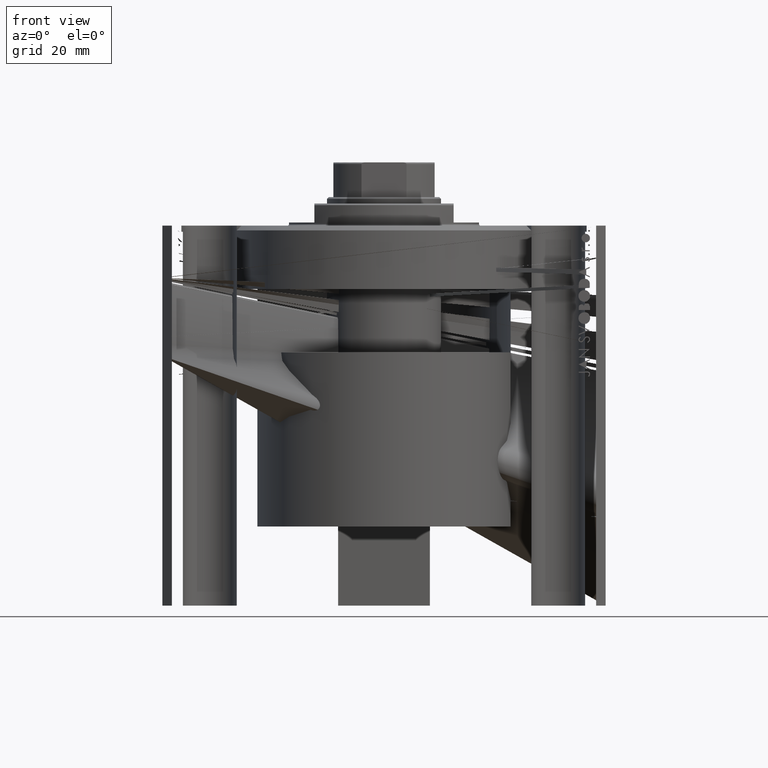
[diagram: clean part render]
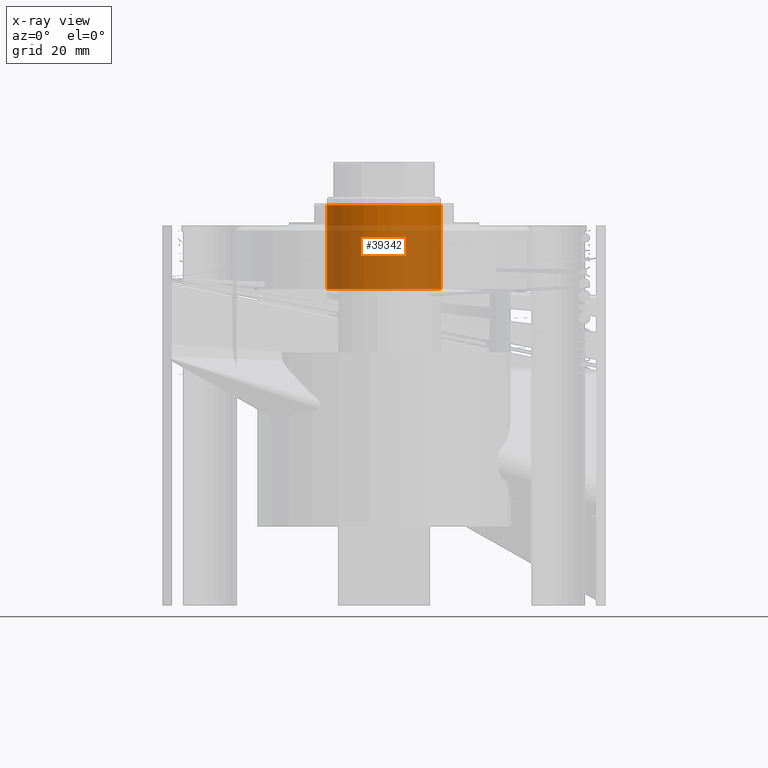
[diagram: x-ray — body ghosted, one internal face saturated and labeled with its STEP entity id]
A machine part, front view, then the same camera in x-ray: the body is ghosted and one INTERNAL B-rep face — a face not visible from any outside direction — is saturated and labeled: STEP entity #39342.
In plain terms, the highlighted cylindrical surface (partial cylindrical patch) has radius 18 mm, axis along (0, -0, 1).
Its self-contained STEP definition (entity closure, byte-faithful):
#1103 = CIRCLE ( 'NONE', #38446, 18.00000000000000000 ) ;
#4029 = CYLINDRICAL_SURFACE ( 'NONE', #18709, 18.00000000000000000 ) ;
#9006 = CARTESIAN_POINT ( 'NONE',  ( 18.00000000000000000, 2.204364238465235428E-15, -6.499999999999974243 ) ) ;
#12270 = CARTESIAN_POINT ( 'NONE',  ( -18.00000000000000000, 0.000000000000000000, 20.00000000000000000 ) ) ;
#12564 = CARTESIAN_POINT ( 'NONE',  ( 0.000000000000000000, 0.000000000000000000, -6.499999999999974243 ) ) ;
#14098 = DIRECTION ( 'NONE',  ( -0.000000000000000000, -0.000000000000000000, -1.000000000000000000 ) ) ;
#14160 = EDGE_CURVE ( 'NONE', #26721, #24475, #1103, .T. ) ;
#14531 = EDGE_LOOP ( 'NONE', ( #27210, #22044, #15994, #33358 ) ) ;
#15468 = DIRECTION ( 'NONE',  ( -1.000000000000000000, 0.000000000000000000, 0.000000000000000000 ) ) ;
#15994 = ORIENTED_EDGE ( 'NONE', *, *, #14160, .T. ) ;
#16418 = VERTEX_POINT ( 'NONE', #27265 ) ;
#17681 = LINE ( 'NONE', #43213, #27661 ) ;
#18709 = AXIS2_PLACEMENT_3D ( 'NONE', #43645, #43874, #32902 ) ;
#20139 = EDGE_CURVE ( 'NONE', #16418, #24475, #23021, .T. ) ;
#22044 = ORIENTED_EDGE ( 'NONE', *, *, #29168, .T. ) ;
#22632 = CARTESIAN_POINT ( 'NONE',  ( 0.000000000000000000, 0.000000000000000000, 20.00000000000000000 ) ) ;
#22887 = CARTESIAN_POINT ( 'NONE',  ( 18.00000000000000000, 2.204364238465235428E-15, 20.00000000000000000 ) ) ;
#23021 = LINE ( 'NONE', #12270, #34276 ) ;
#24475 = VERTEX_POINT ( 'NONE', #32842 ) ;
#25592 = VERTEX_POINT ( 'NONE', #22887 ) ;
#26721 = VERTEX_POINT ( 'NONE', #9006 ) ;
#27210 = ORIENTED_EDGE ( 'NONE', *, *, #38666, .F. ) ;
#27265 = CARTESIAN_POINT ( 'NONE',  ( -18.00000000000000000, 0.000000000000000000, 20.00000000000000000 ) ) ;
#27661 = VECTOR ( 'NONE', #14098, 1000.000000000000000 ) ;
#29168 = EDGE_CURVE ( 'NONE', #25592, #26721, #17681, .T. ) ;
#32842 = CARTESIAN_POINT ( 'NONE',  ( -18.00000000000000000, 0.000000000000000000, -6.499999999999974243 ) ) ;
#32902 = DIRECTION ( 'NONE',  ( -1.000000000000000000, 0.000000000000000000, 0.000000000000000000 ) ) ;
#33358 = ORIENTED_EDGE ( 'NONE', *, *, #20139, .F. ) ;
#34276 = VECTOR ( 'NONE', #41393, 1000.000000000000000 ) ;
#36255 = FACE_OUTER_BOUND ( 'NONE', #14531, .T. ) ;
#37794 = AXIS2_PLACEMENT_3D ( 'NONE', #22632, #44336, #15468 ) ;
#38446 = AXIS2_PLACEMENT_3D ( 'NONE', #12564, #40744, #44542 ) ;
#38666 = EDGE_CURVE ( 'NONE', #25592, #16418, #46931, .T. ) ;
#39342 = ADVANCED_FACE ( 'NONE', ( #36255 ), #4029, .F. ) ;
#40744 = DIRECTION ( 'NONE',  ( 0.000000000000000000, 0.000000000000000000, -1.000000000000000000 ) ) ;
#41393 = DIRECTION ( 'NONE',  ( -0.000000000000000000, -0.000000000000000000, -1.000000000000000000 ) ) ;
#43213 = CARTESIAN_POINT ( 'NONE',  ( 18.00000000000000000, 2.204364238465235428E-15, 20.00000000000000000 ) ) ;
#43645 = CARTESIAN_POINT ( 'NONE',  ( 0.000000000000000000, 0.000000000000000000, 20.00000000000000000 ) ) ;
#43874 = DIRECTION ( 'NONE',  ( -0.000000000000000000, -0.000000000000000000, -1.000000000000000000 ) ) ;
#44336 = DIRECTION ( 'NONE',  ( 0.000000000000000000, 0.000000000000000000, -1.000000000000000000 ) ) ;
#44542 = DIRECTION ( 'NONE',  ( -1.000000000000000000, 0.000000000000000000, 0.000000000000000000 ) ) ;
#46931 = CIRCLE ( 'NONE', #37794, 18.00000000000000000 ) ;